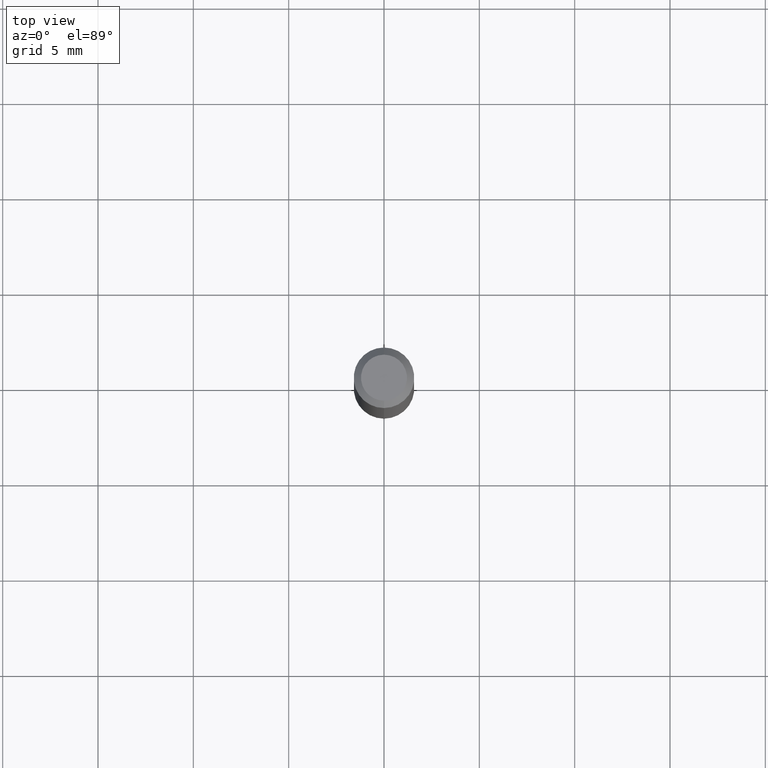
[diagram: clean part render]
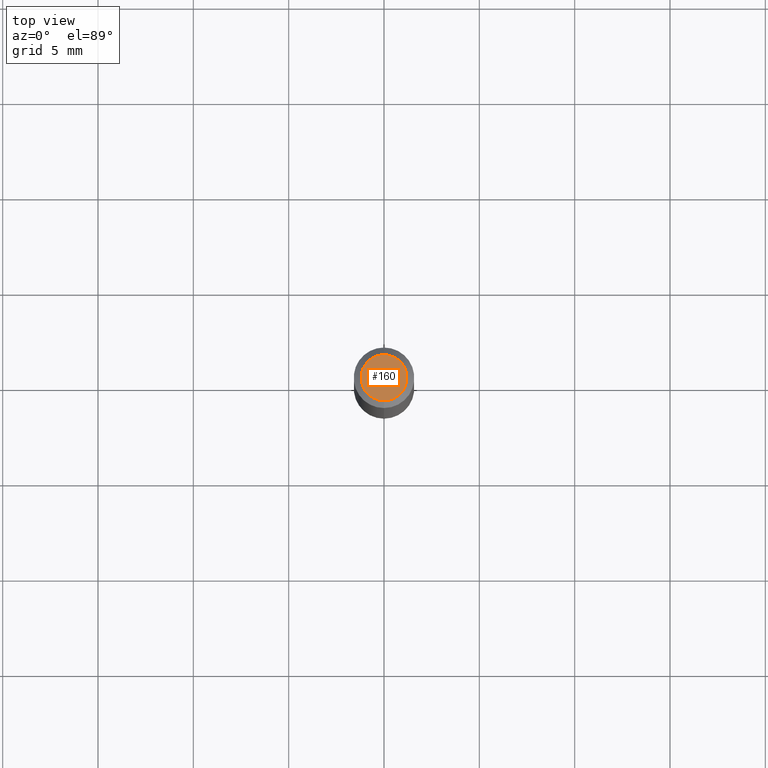
[diagram: same view with one face highlighted and labeled with its STEP entity id]
A machine part, top view. The second image highlights one B-rep face of the part: STEP entity #160.
In plain terms, the highlighted planar face has unit normal (0, -0, -1).
Its self-contained STEP definition (entity closure, byte-faithful):
#12 = VERTEX_POINT ( 'NONE', #454 ) ;
#14 = FACE_OUTER_BOUND ( 'NONE', #161, .T. ) ;
#67 = DIRECTION ( 'NONE',  ( -2.445484019338910371E-29, 3.491459552741062700E-15, 1.000000000000000000 ) ) ;
#71 = CARTESIAN_POINT ( 'NONE',  ( -3.773273898774340269E-16, -0.04749999999999999362, 1.003430598629553348E-16 ) ) ;
#114 = DIRECTION ( 'NONE',  ( 6.982962677686265922E-15, 1.000000000000000000, -3.491459552741062700E-15 ) ) ;
#129 = CARTESIAN_POINT ( 'NONE',  ( 1.601823063224064103E-45, -2.286950309904903287E-31, -6.550126889224514052E-17 ) ) ;
#135 = PLANE ( 'NONE',  #245 ) ;
#154 = AXIS2_PLACEMENT_3D ( 'NONE', #129, #405, #329 ) ;
#160 = ADVANCED_FACE ( 'NONE', ( #14 ), #135, .F. ) ;
#161 = EDGE_LOOP ( 'NONE', ( #249, #246 ) ) ;
#172 = AXIS2_PLACEMENT_3D ( 'NONE', #472, #67, #462 ) ;
#187 = DIRECTION ( 'NONE',  ( 2.445484019338910091E-29, -3.491459552741062700E-15, -1.000000000000000000 ) ) ;
#215 = CARTESIAN_POINT ( 'NONE',  ( 3.316907271900976096E-16, 0.04749999999999999362, -1.985949632013230394E-16 ) ) ;
#237 = EDGE_CURVE ( 'NONE', #291, #12, #393, .T. ) ;
#245 = AXIS2_PLACEMENT_3D ( 'NONE', #215, #187, #114 ) ;
#246 = ORIENTED_EDGE ( 'NONE', *, *, #237, .T. ) ;
#249 = ORIENTED_EDGE ( 'NONE', *, *, #459, .T. ) ;
#291 = VERTEX_POINT ( 'NONE', #71 ) ;
#329 = DIRECTION ( 'NONE',  ( -6.982962677686266711E-15, -1.000000000000000000, 3.491459552741063094E-15 ) ) ;
#337 = CIRCLE ( 'NONE', #154, 0.04749999999999999362 ) ;
#393 = CIRCLE ( 'NONE', #172, 0.04749999999999999362 ) ;
#405 = DIRECTION ( 'NONE',  ( -2.445484019338910371E-29, 3.491459552741062700E-15, 1.000000000000000000 ) ) ;
#454 = CARTESIAN_POINT ( 'NONE',  ( 3.840629472727447874E-16, 0.04749999999999999362, -2.313455976474456035E-16 ) ) ;
#459 = EDGE_CURVE ( 'NONE', #12, #291, #337, .T. ) ;
#462 = DIRECTION ( 'NONE',  ( -6.982962677686266711E-15, -1.000000000000000000, 3.491459552741063094E-15 ) ) ;
#472 = CARTESIAN_POINT ( 'NONE',  ( 1.601823063224064103E-45, -2.286950309904903287E-31, -6.550126889224514052E-17 ) ) ;